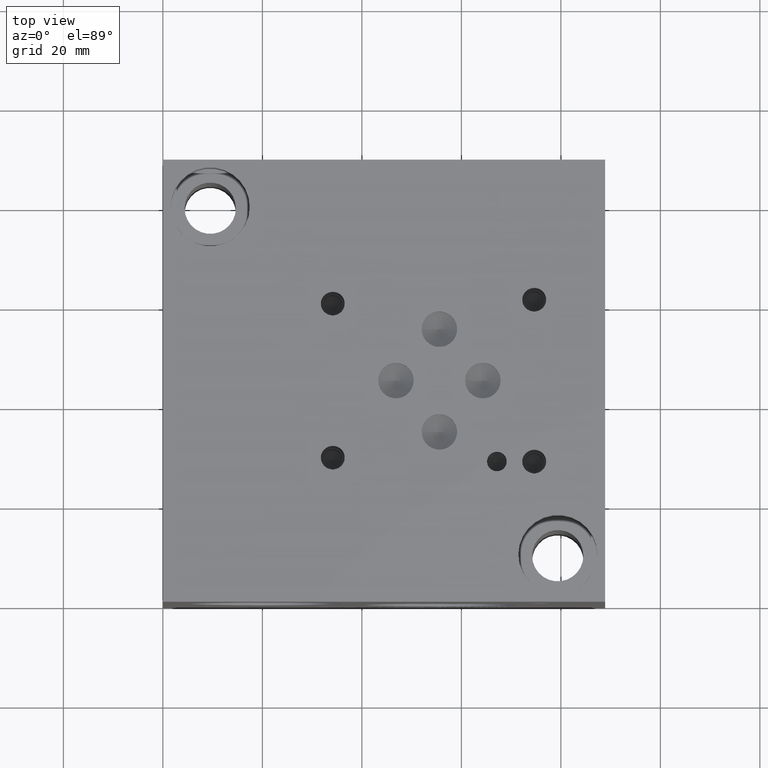
[diagram: clean part render]
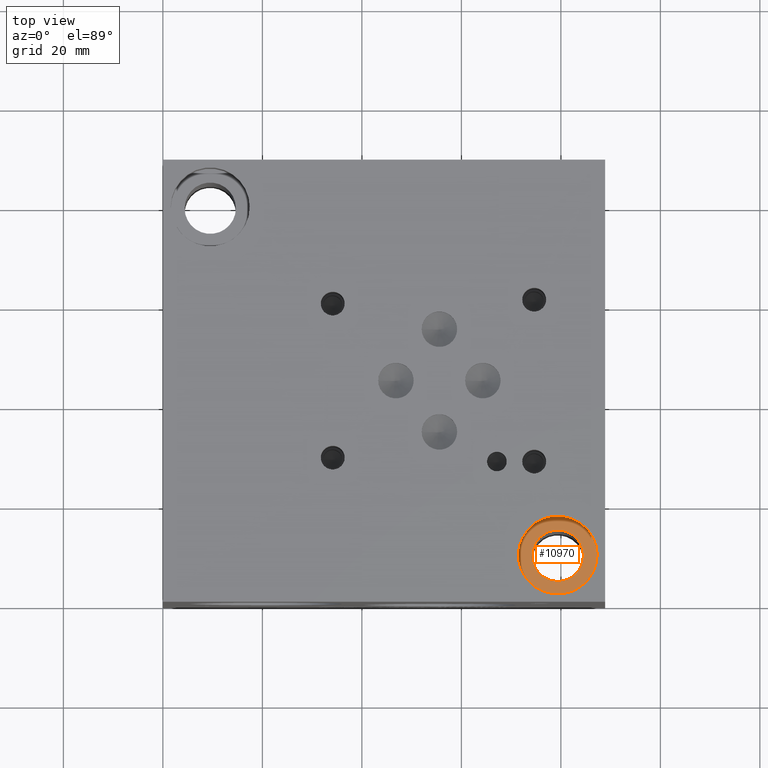
[diagram: same view with one face highlighted and labeled with its STEP entity id]
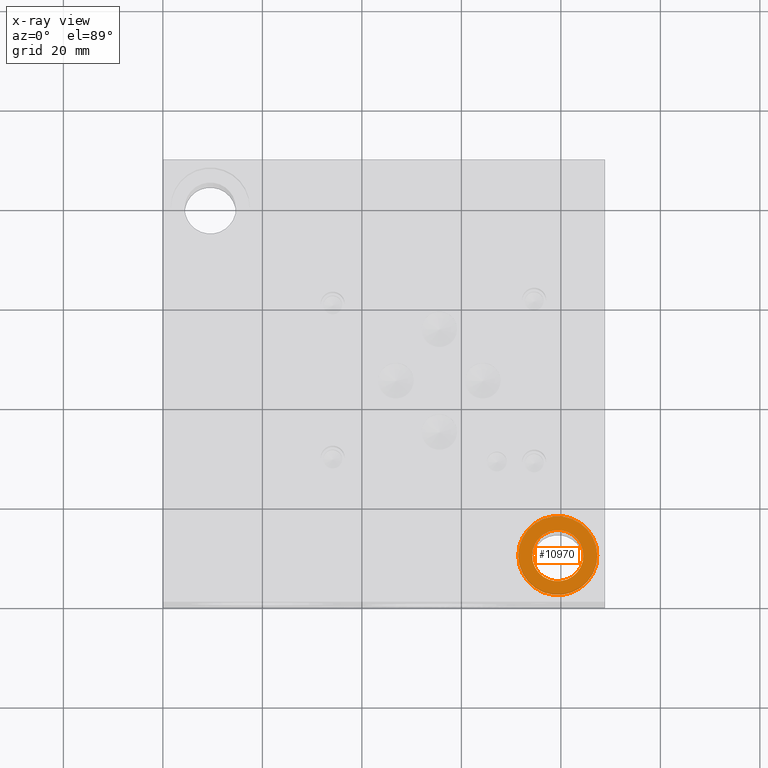
[diagram: x-ray of the same camera — body ghosted, the highlighted face saturated]
A machine part, top view. The second image highlights one B-rep face of the part: STEP entity #10970.
The next image is the same camera in x-ray: the body ghosted, the highlighted face saturated — about 0% of this face is hidden behind the body in this view.
In plain terms, the highlighted planar face has unit normal (0, 0, 1).
Its self-contained STEP definition (entity closure, byte-faithful):
#291=CIRCLE('',#11577,7.9375);
#292=CIRCLE('',#11578,7.9375);
#293=CIRCLE('',#11579,5.1562);
#368=FACE_BOUND('',#1879,.T.);
#689=PLANE('',#11576);
#1248=FACE_OUTER_BOUND('',#1878,.T.);
#1878=EDGE_LOOP('',(#9751,#9752));
#1879=EDGE_LOOP('',(#9753));
#5256=VERTEX_POINT('',#18958);
#5257=VERTEX_POINT('',#18959);
#5258=VERTEX_POINT('',#18962);
#6770=EDGE_CURVE('',#5256,#5257,#291,.T.);
#6771=EDGE_CURVE('',#5257,#5256,#292,.T.);
#6772=EDGE_CURVE('',#5258,#5258,#293,.T.);
#9751=ORIENTED_EDGE('',*,*,#6770,.T.);
#9752=ORIENTED_EDGE('',*,*,#6771,.T.);
#9753=ORIENTED_EDGE('',*,*,#6772,.F.);
#10970=ADVANCED_FACE('',(#1248,#368),#689,.T.);
#11576=AXIS2_PLACEMENT_3D('',#18957,#13758,#13759);
#11577=AXIS2_PLACEMENT_3D('',#18960,#13760,#13761);
#11578=AXIS2_PLACEMENT_3D('',#18961,#13762,#13763);
#11579=AXIS2_PLACEMENT_3D('',#18963,#13764,#13765);
#13758=DIRECTION('center_axis',(0.,0.,1.));
#13759=DIRECTION('ref_axis',(1.,0.,0.));
#13760=DIRECTION('center_axis',(0.,0.,1.));
#13761=DIRECTION('ref_axis',(1.,0.,0.));
#13762=DIRECTION('center_axis',(0.,0.,1.));
#13763=DIRECTION('ref_axis',(1.,0.,0.));
#13764=DIRECTION('center_axis',(0.,0.,1.));
#13765=DIRECTION('ref_axis',(1.,0.,0.));
#18957=CARTESIAN_POINT('Origin',(79.375,9.525,61.9252));
#18958=CARTESIAN_POINT('',(87.3125,9.525,61.9252));
#18959=CARTESIAN_POINT('',(71.4375,9.525,61.9252));
#18960=CARTESIAN_POINT('Origin',(79.375,9.525,61.9252));
#18961=CARTESIAN_POINT('Origin',(79.375,9.525,61.9252));
#18962=CARTESIAN_POINT('',(74.2188,9.525,61.9252));
#18963=CARTESIAN_POINT('Origin',(79.375,9.525,61.9252));